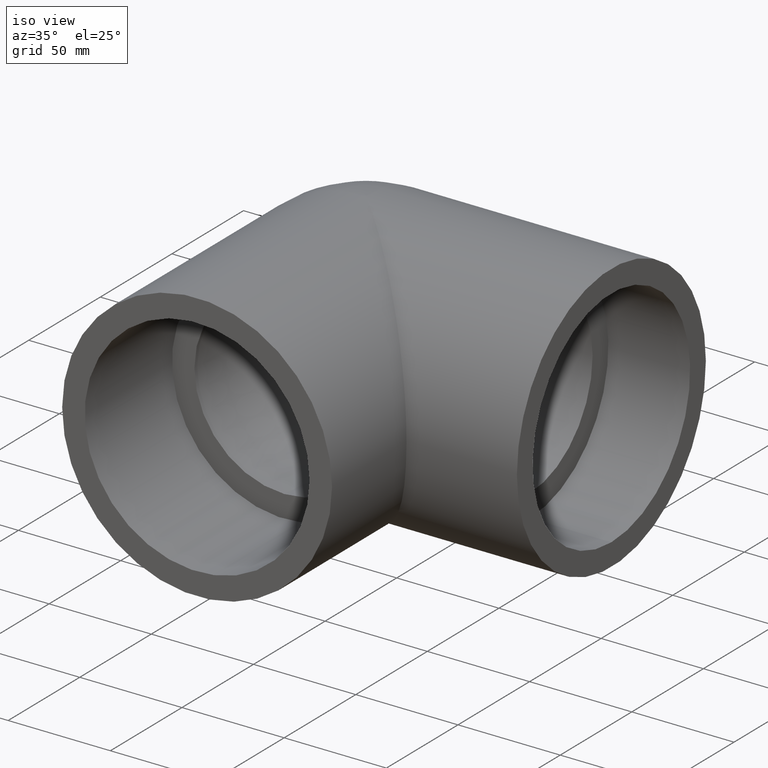
[diagram: clean part render]
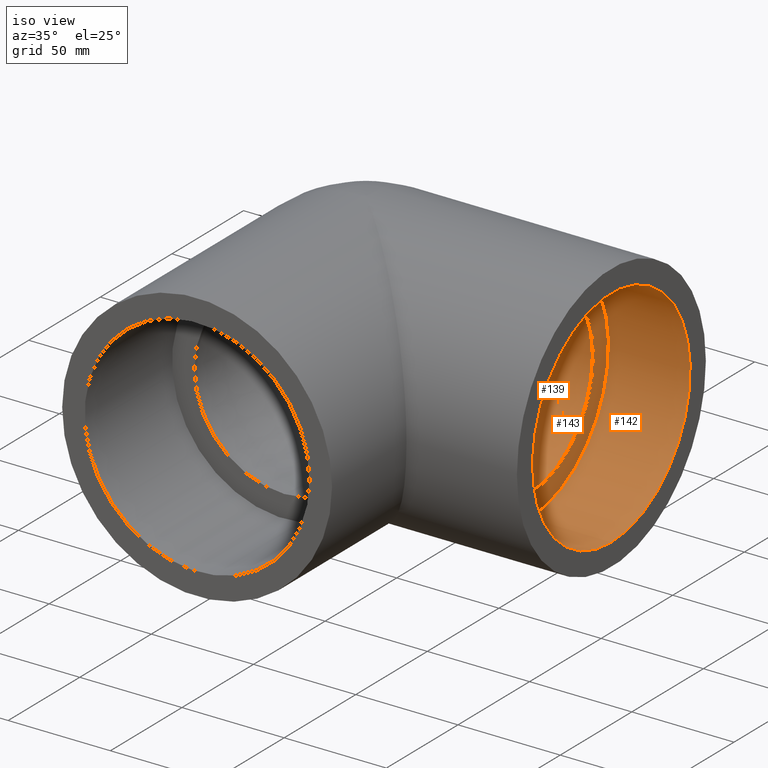
[diagram: same view with one multi-face feature highlighted, each face labeled with its STEP entity id]
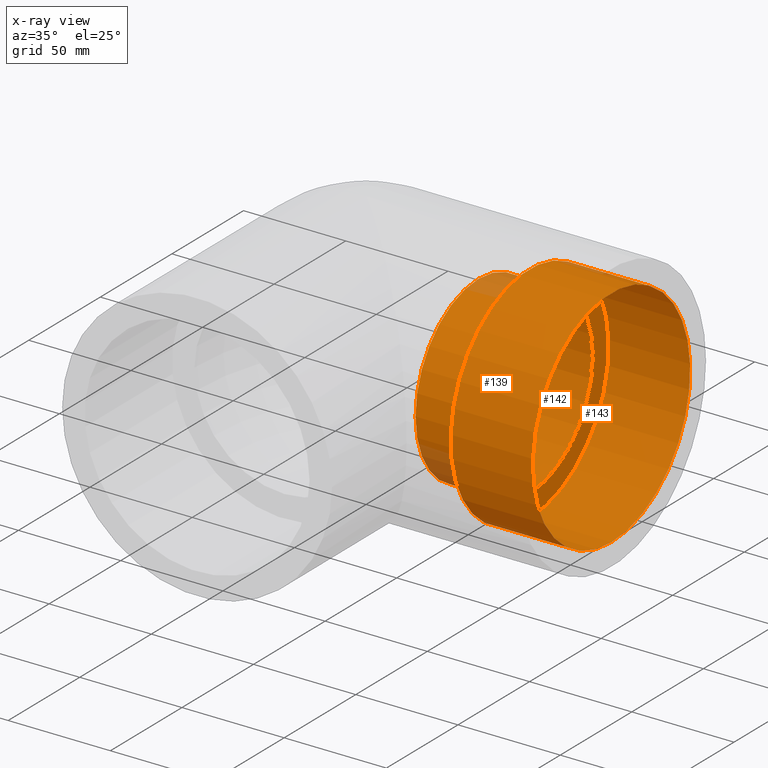
[diagram: x-ray of the same camera — body ghosted, the whole feature saturated]
A machine part, iso view. The highlighted faces form ONE feature: a stepped (counterbored) hole: 2 coaxial cylindrical walls of radii 44.0288 -> 55.036 mm joined by 1 annular planar shoulder face(s). The faces share edges in the B-rep.
The next image is the same camera in x-ray: the body ghosted and the whole hole feature saturated, so the bore chain is visible through the body.
Their STEP definitions:
[1] entity #142 (Cylinder):
#27=FACE_BOUND('',#56,.T.);
#38=FACE_OUTER_BOUND('',#55,.T.);
#55=EDGE_LOOP('',(#115));
#56=EDGE_LOOP('',(#116));
#74=CIRCLE('',#163,55.036);
#75=CIRCLE('',#164,55.036);
#86=VERTEX_POINT('',#247);
#87=VERTEX_POINT('',#249);
#98=EDGE_CURVE('',#86,#86,#74,.T.);
#99=EDGE_CURVE('',#87,#87,#75,.T.);
#115=ORIENTED_EDGE('',*,*,#98,.T.);
#116=ORIENTED_EDGE('',*,*,#99,.F.);
#134=CYLINDRICAL_SURFACE('',#162,55.036);
#142=ADVANCED_FACE('',(#38,#27),#134,.F.);
#162=AXIS2_PLACEMENT_3D('',#246,#200,#201);
#163=AXIS2_PLACEMENT_3D('',#248,#202,#203);
#164=AXIS2_PLACEMENT_3D('',#250,#204,#205);
#200=DIRECTION('center_axis',(-1.,0.,0.));
#201=DIRECTION('ref_axis',(0.,0.,1.));
#202=DIRECTION('center_axis',(-1.,0.,0.));
#203=DIRECTION('ref_axis',(0.,0.,1.));
#204=DIRECTION('center_axis',(-1.,0.,0.));
#205=DIRECTION('ref_axis',(0.,0.,1.));
#246=CARTESIAN_POINT('Origin',(120.,0.,0.));
#247=CARTESIAN_POINT('',(80.,6.73996612378737E-15,-55.036));
#248=CARTESIAN_POINT('Origin',(80.,0.,0.));
#249=CARTESIAN_POINT('',(120.,6.73996612378737E-15,-55.036));
#250=CARTESIAN_POINT('Origin',(120.,0.,0.));
[2] entity #139 (Cylinder):
#24=FACE_BOUND('',#50,.T.);
#35=FACE_OUTER_BOUND('',#49,.T.);
#49=EDGE_LOOP('',(#109));
#50=EDGE_LOOP('',(#110));
#70=CIRCLE('',#155,44.0288);
#71=CIRCLE('',#157,44.0288);
#82=VERTEX_POINT('',#235);
#83=VERTEX_POINT('',#238);
#94=EDGE_CURVE('',#82,#82,#70,.T.);
#95=EDGE_CURVE('',#83,#83,#71,.T.);
#109=ORIENTED_EDGE('',*,*,#94,.T.);
#110=ORIENTED_EDGE('',*,*,#95,.F.);
#132=CYLINDRICAL_SURFACE('',#156,44.0288);
#139=ADVANCED_FACE('',(#35,#24),#132,.F.);
#155=AXIS2_PLACEMENT_3D('',#236,#186,#187);
#156=AXIS2_PLACEMENT_3D('',#237,#188,#189);
#157=AXIS2_PLACEMENT_3D('',#239,#190,#191);
#186=DIRECTION('center_axis',(-1.,0.,0.));
#187=DIRECTION('ref_axis',(0.,0.,1.));
#188=DIRECTION('center_axis',(-1.,-2.93293487371329E-19,0.));
#189=DIRECTION('ref_axis',(0.,0.,1.));
#190=DIRECTION('center_axis',(-1.,0.,0.));
#191=DIRECTION('ref_axis',(0.,0.,1.));
#235=CARTESIAN_POINT('',(55.036,5.38465112041116E-15,-44.0288));
#236=CARTESIAN_POINT('Origin',(55.036,-7.32177861873785E-18,0.));
#237=CARTESIAN_POINT('Origin',(80.,0.,0.));
#238=CARTESIAN_POINT('',(80.,5.3919728990299E-15,-44.0288));
#239=CARTESIAN_POINT('Origin',(80.,9.25479780236516E-53,0.));
[3] entity #143 (Plane):
#18=PLANE('',#165);
#28=FACE_BOUND('',#58,.T.);
#39=FACE_OUTER_BOUND('',#57,.T.);
#57=EDGE_LOOP('',(#117));
#58=EDGE_LOOP('',(#118));
#71=CIRCLE('',#157,44.0288);
#74=CIRCLE('',#163,55.036);
#83=VERTEX_POINT('',#238);
#86=VERTEX_POINT('',#247);
#95=EDGE_CURVE('',#83,#83,#71,.T.);
#98=EDGE_CURVE('',#86,#86,#74,.T.);
#117=ORIENTED_EDGE('',*,*,#98,.F.);
#118=ORIENTED_EDGE('',*,*,#95,.T.);
#143=ADVANCED_FACE('',(#39,#28),#18,.T.);
#157=AXIS2_PLACEMENT_3D('',#239,#190,#191);
#163=AXIS2_PLACEMENT_3D('',#248,#202,#203);
#165=AXIS2_PLACEMENT_3D('',#251,#206,#207);
#190=DIRECTION('center_axis',(-1.,0.,0.));
#191=DIRECTION('ref_axis',(0.,0.,1.));
#202=DIRECTION('center_axis',(-1.,0.,0.));
#203=DIRECTION('ref_axis',(0.,0.,1.));
#206=DIRECTION('center_axis',(1.,0.,0.));
#207=DIRECTION('ref_axis',(0.,0.,-1.));
#238=CARTESIAN_POINT('',(80.,5.3919728990299E-15,-44.0288));
#239=CARTESIAN_POINT('Origin',(80.,9.25479780236516E-53,0.));
#247=CARTESIAN_POINT('',(80.,6.73996612378737E-15,-55.036));
#248=CARTESIAN_POINT('Origin',(80.,0.,0.));
#251=CARTESIAN_POINT('Origin',(80.,1.07587569312223E-15,2.71341522989341E-15));